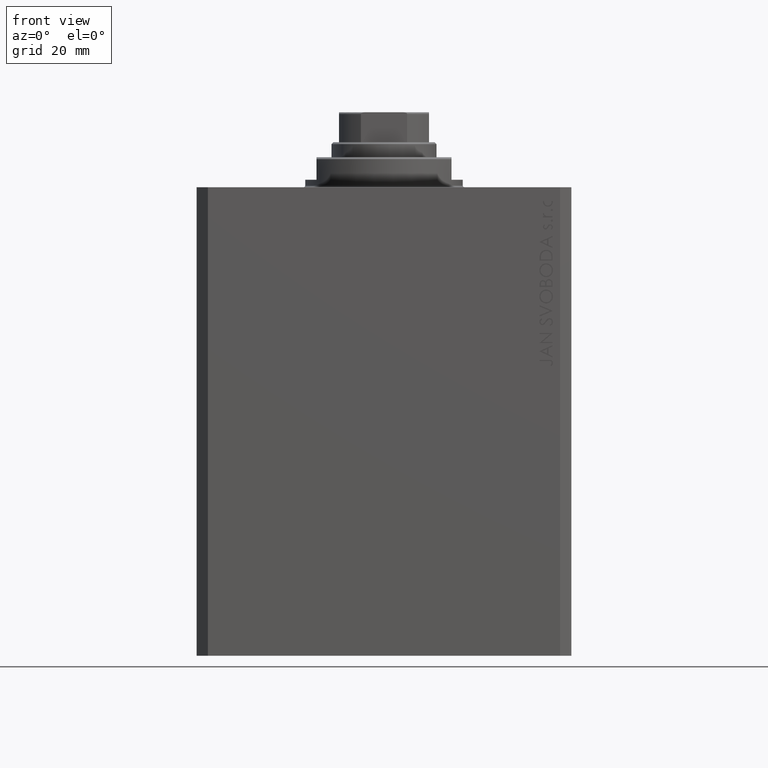
[diagram: clean part render]
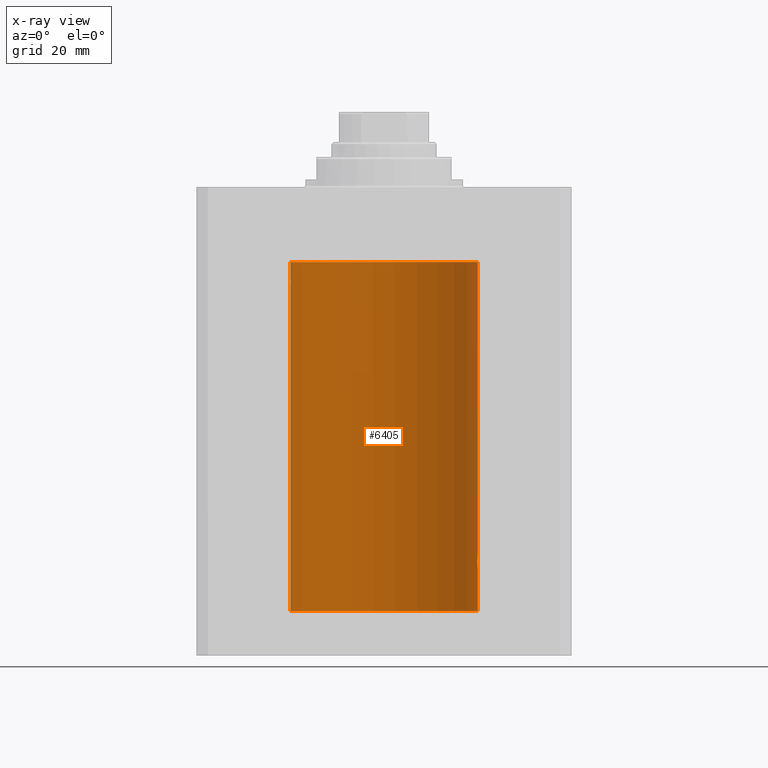
[diagram: x-ray — body ghosted, one internal face saturated and labeled with its STEP entity id]
A machine part, front view, then the same camera in x-ray: the body is ghosted and one INTERNAL B-rep face — a face not visible from any outside direction — is saturated and labeled: STEP entity #6405.
In plain terms, the highlighted cylindrical surface (partial cylindrical patch) has radius 25 mm, axis along (0, 0, 1).
Its self-contained STEP definition (entity closure, byte-faithful):
#331 = AXIS2_PLACEMENT_3D ( 'NONE', #22648, #15499, #21958 ) ;
#996 = DIRECTION ( 'NONE',  ( -0.000000000000000000, -0.000000000000000000, 1.000000000000000000 ) ) ;
#1014 = CARTESIAN_POINT ( 'NONE',  ( -24.94946096189906015, 1.590491165172939647, -26.21955560407613461 ) ) ;
#1070 = CARTESIAN_POINT ( 'NONE',  ( -25.00000000000000000, 3.061616997868383043E-15, -20.00000000000000355 ) ) ;
#1648 = EDGE_CURVE ( 'NONE', #32677, #12519, #36125, .T. ) ;
#1651 = CARTESIAN_POINT ( 'NONE',  ( 24.91987158875419794, 2.000000000000375255, -100.0000000000000000 ) ) ;
#2126 = CARTESIAN_POINT ( 'NONE',  ( 24.98454161695537223, 0.8873356620645981296, -101.7971726743456742 ) ) ;
#2364 = CARTESIAN_POINT ( 'NONE',  ( 24.99496001540385848, 0.5180074392840622322, -101.9361479946135205 ) ) ;
#3200 = CYLINDRICAL_SURFACE ( 'NONE', #18359, 25.00000000000000000 ) ;
#3552 = VERTEX_POINT ( 'NONE', #33590 ) ;
#3738 = VERTEX_POINT ( 'NONE', #1070 ) ;
#3762 = EDGE_CURVE ( 'NONE', #13056, #3738, #30987, .T. ) ;
#3852 = CARTESIAN_POINT ( 'NONE',  ( 25.00000000000000000, -1.072061970195355044E-23, -98.00000000000000000 ) ) ;
#4077 = CARTESIAN_POINT ( 'NONE',  ( 24.95467834240023919, 1.507571193169164436, -98.67914516237102873 ) ) ;
#4343 = CARTESIAN_POINT ( 'NONE',  ( -25.00000000000000000, 3.061616997868383043E-15, -113.0999999999999943 ) ) ;
#4603 = CARTESIAN_POINT ( 'NONE',  ( -24.92092244115666944, 1.987028274514494930, -25.26234881237649432 ) ) ;
#5399 = CARTESIAN_POINT ( 'NONE',  ( 25.00000000000000000, -1.072061970195355044E-23, -98.00000000000000000 ) ) ;
#5548 = CARTESIAN_POINT ( 'NONE',  ( -24.99895219182537787, 0.2621830013652935443, -23.01297886590101172 ) ) ;
#5699 = CARTESIAN_POINT ( 'NONE',  ( 24.92422785753204906, 1.947526681255389525, -100.5244453533215392 ) ) ;
#6405 = ADVANCED_FACE ( 'NONE', ( #46644 ), #3200, .F. ) ;
#6730 = VERTEX_POINT ( 'NONE', #29508 ) ;
#6953 = CARTESIAN_POINT ( 'NONE',  ( 24.98009620012517829, 1.003265033550135854, -98.26494305889434600 ) ) ;
#7311 = CARTESIAN_POINT ( 'NONE',  ( 0.000000000000000000, 0.000000000000000000, -20.00000000000000355 ) ) ;
#7432 = VECTOR ( 'NONE', #28616, 1000.000000000000000 ) ;
#8168 = CARTESIAN_POINT ( 'NONE',  ( -24.91986783040116649, 2.000046828840892577, -25.12978542103931545 ) ) ;
#8640 = CARTESIAN_POINT ( 'NONE',  ( -25.00000000000000000, 0.1322014778934262891, -23.00000000000000355 ) ) ;
#9275 = CARTESIAN_POINT ( 'NONE',  ( 24.93900639076503722, 1.748128916801924504, -101.0059564568424264 ) ) ;
#9587 = CARTESIAN_POINT ( 'NONE',  ( -24.99199174798888023, 0.6442364453337716679, -26.89793475977048232 ) ) ;
#9703 = VERTEX_POINT ( 'NONE', #5399 ) ;
#9823 = B_SPLINE_CURVE_WITH_KNOTS ( 'NONE', 3,
 ( #11238, #11004, #22196, #29365, #33180, #46818, #14116, #43717, #4077, #39667, #36067, #6953, #18606, #32488, #21495, #43947, #39893, #3852 ),
 .UNSPECIFIED., .F., .F.,
 ( 4, 2, 2, 2, 2, 2, 2, 2, 4 ),
 ( 0.003128423524421375217, 0.003519296810509137119, 0.003910170096596899021, 0.004301043382684660923, 0.004691916668772423693, 0.005082789954860184728, 0.005473663240947946630, 0.005864536527035708532, 0.006255409813123470435 ),
 .UNSPECIFIED. ) ;
#10600 = CARTESIAN_POINT ( 'NONE',  ( 0.000000000000000000, 0.000000000000000000, -113.0999999999999943 ) ) ;
#10804 = ORIENTED_EDGE ( 'NONE', *, *, #16297, .F. ) ;
#11004 = CARTESIAN_POINT ( 'NONE',  ( 24.91987158875419439, 2.000000000000375699, -99.86952236750346401 ) ) ;
#11056 = ORIENTED_EDGE ( 'NONE', *, *, #14223, .T. ) ;
#11238 = CARTESIAN_POINT ( 'NONE',  ( 24.91987158875419794, 2.000000000000375255, -100.0000000000000000 ) ) ;
#11757 = CARTESIAN_POINT ( 'NONE',  ( -24.96517827869064021, 1.322271947215002852, -23.49381014772490417 ) ) ;
#12235 = CARTESIAN_POINT ( 'NONE',  ( -24.99496228453478608, 0.5178909248663671194, -23.06382286360416956 ) ) ;
#12519 = VERTEX_POINT ( 'NONE', #26765 ) ;
#12864 = CARTESIAN_POINT ( 'NONE',  ( 25.00000000000000000, 3.613683980139323145E-15, -102.0000000000000142 ) ) ;
#13056 = VERTEX_POINT ( 'NONE', #39765 ) ;
#13203 = DIRECTION ( 'NONE',  ( -0.000000000000000000, -0.000000000000000000, 1.000000000000000000 ) ) ;
#13917 = CARTESIAN_POINT ( 'NONE',  ( 25.00000000000000000, 0.000000000000000000, -113.0999999999999943 ) ) ;
#14015 = DIRECTION ( 'NONE',  ( 0.000000000000000000, 0.000000000000000000, 1.000000000000000000 ) ) ;
#14116 = CARTESIAN_POINT ( 'NONE',  ( 24.93982559358191153, 1.735040297787688646, -98.99670286233153149 ) ) ;
#14118 = ORIENTED_EDGE ( 'NONE', *, *, #35982, .T. ) ;
#14182 = ORIENTED_EDGE ( 'NONE', *, *, #3762, .F. ) ;
#14223 = EDGE_CURVE ( 'NONE', #13056, #3552, #29766, .T. ) ;
#14397 = EDGE_CURVE ( 'NONE', #12519, #9703, #9823, .T. ) ;
#14881 = VECTOR ( 'NONE', #996, 1000.000000000000000 ) ;
#15331 = CARTESIAN_POINT ( 'NONE',  ( -24.99197317726958545, 0.6449463114735953795, -23.10230905830972858 ) ) ;
#15499 = DIRECTION ( 'NONE',  ( 0.000000000000000000, 0.000000000000000000, 1.000000000000000000 ) ) ;
#16038 = CARTESIAN_POINT ( 'NONE',  ( -24.93531696180024682, 1.797913585505315215, -25.88582454002299826 ) ) ;
#16297 = EDGE_CURVE ( 'NONE', #6730, #24918, #41497, .T. ) ;
#17212 = CARTESIAN_POINT ( 'NONE',  ( -24.99492963589240091, 0.5195477780157325975, -26.93575766978349151 ) ) ;
#17984 = CARTESIAN_POINT ( 'NONE',  ( -25.00000000000000000, 3.061616997868383043E-15, -113.0999999999999943 ) ) ;
#18106 = AXIS2_PLACEMENT_3D ( 'NONE', #7311, #14015, #46245 ) ;
#18359 = AXIS2_PLACEMENT_3D ( 'NONE', #10600, #25149, #21776 ) ;
#18606 = CARTESIAN_POINT ( 'NONE',  ( 24.98457651818866765, 0.8863534138924961114, -98.20234421602245334 ) ) ;
#19617 = CARTESIAN_POINT ( 'NONE',  ( -24.97044682385318026, 1.220055540032808805, -26.59010549084178265 ) ) ;
#19814 = VERTEX_POINT ( 'NONE', #46578 ) ;
#20636 = ORIENTED_EDGE ( 'NONE', *, *, #24716, .T. ) ;
#21495 = CARTESIAN_POINT ( 'NONE',  ( 24.99493190796009046, 0.5194315891213243663, -98.06421314474680173 ) ) ;
#21776 = DIRECTION ( 'NONE',  ( 1.000000000000000000, 0.000000000000000000, 0.000000000000000000 ) ) ;
#21958 = DIRECTION ( 'NONE',  ( 1.000000000000000000, 0.000000000000000000, 0.000000000000000000 ) ) ;
#22196 = CARTESIAN_POINT ( 'NONE',  ( 24.92092960952687264, 1.986938806757485132, -99.73699118910590755 ) ) ;
#22648 = CARTESIAN_POINT ( 'NONE',  ( 0.000000000000000000, 0.000000000000000000, -113.0999999999999943 ) ) ;
#22950 = CARTESIAN_POINT ( 'NONE',  ( -24.93902394873053296, 1.747880816115506164, -23.99362802520557025 ) ) ;
#23182 = CARTESIAN_POINT ( 'NONE',  ( -24.92788761901291750, 1.898142276082072089, -25.64361034516351978 ) ) ;
#23594 = CARTESIAN_POINT ( 'NONE',  ( 25.00000000000000355, 0.1322318523520167877, -102.0000000000000142 ) ) ;
#23673 = CARTESIAN_POINT ( 'NONE',  ( -25.00000000000000000, -9.880247245846597702E-15, -23.00000000000000000 ) ) ;
#24380 = CARTESIAN_POINT ( 'NONE',  ( -25.00000000000000000, 3.061616987151861079E-15, -26.99999999999999645 ) ) ;
#24621 = CARTESIAN_POINT ( 'NONE',  ( -25.00000000000001066, 0.1305561315491718666, -27.00000000000000711 ) ) ;
#24716 = EDGE_CURVE ( 'NONE', #19814, #3738, #36403, .T. ) ;
#24791 = CARTESIAN_POINT ( 'NONE',  ( 25.00000000000000000, 0.000000000000000000, -113.0999999999999943 ) ) ;
#24918 = VERTEX_POINT ( 'NONE', #17984 ) ;
#25149 = DIRECTION ( 'NONE',  ( -0.000000000000000000, -0.000000000000000000, 1.000000000000000000 ) ) ;
#25905 = VECTOR ( 'NONE', #27414, 1000.000000000000000 ) ;
#26310 = CARTESIAN_POINT ( 'NONE',  ( -24.94950203352433604, 1.598895442473012851, -23.77053781758364792 ) ) ;
#26765 = CARTESIAN_POINT ( 'NONE',  ( 24.91987158875419794, 2.000000000000375255, -100.0000000000000000 ) ) ;
#26930 = CARTESIAN_POINT ( 'NONE',  ( -25.00000000000000000, 3.061616997868383043E-15, -113.0999999999999943 ) ) ;
#27175 = CARTESIAN_POINT ( 'NONE',  ( 24.98014008684978648, 1.002218476749560327, -101.7356982428406553 ) ) ;
#27414 = DIRECTION ( 'NONE',  ( -0.000000000000000000, -0.000000000000000000, 1.000000000000000000 ) ) ;
#27504 = CARTESIAN_POINT ( 'NONE',  ( -24.99894363691344168, 0.2631623743596695486, -26.98691550260398841 ) ) ;
#27658 = CARTESIAN_POINT ( 'NONE',  ( 24.96516502151963124, 1.322522485723470531, -101.5059723511098184 ) ) ;
#28309 = EDGE_LOOP ( 'NONE', ( #39956, #10804, #45719, #29913, #34851, #14118, #20636, #14182, #11056 ) ) ;
#28561 = VECTOR ( 'NONE', #13203, 1000.000000000000000 ) ;
#28616 = DIRECTION ( 'NONE',  ( -0.000000000000000000, -0.000000000000000000, 1.000000000000000000 ) ) ;
#29365 = CARTESIAN_POINT ( 'NONE',  ( 24.92495585240437350, 1.935777409849491759, -99.48051441220836466 ) ) ;
#29508 = CARTESIAN_POINT ( 'NONE',  ( 25.00000000000000000, 0.000000000000000000, -113.0999999999999943 ) ) ;
#29766 = B_SPLINE_CURVE_WITH_KNOTS ( 'NONE', 3,
 ( #23673, #8640, #5548, #12235, #15331, #29890, #41587, #44465, #11757, #26310, #22950, #41127, #40881, #8168, #4603, #33707, #23182, #16038, #30596, #1014, #44699, #37524, #19617, #34187, #42298, #9587, #17212, #27504, #24621, #24380 ),
 .UNSPECIFIED., .F., .F.,
 ( 4, 2, 2, 2, 2, 2, 2, 2, 2, 2, 2, 2, 2, 2, 4 ),
 ( 1.711460648662030874E-19, 0.0003909631133201684925, 0.0007819262266403368767, 0.001172889339960505152, 0.001563852453280673536, 0.002345778679921010305, 0.003127704906561347507, 0.003518668019881516108, 0.003909631133201684275, 0.004300594246521852876, 0.004691557359842020609, 0.005082520473162189210, 0.005473483586482357811, 0.005864446699802525545, 0.006255409813122695013 ),
 .UNSPECIFIED. ) ;
#29890 = CARTESIAN_POINT ( 'NONE',  ( -24.98454822070441850, 0.8871466876120172040, -23.20273613247366384 ) ) ;
#29913 = ORIENTED_EDGE ( 'NONE', *, *, #1648, .T. ) ;
#29914 = EDGE_CURVE ( 'NONE', #6730, #32677, #32198, .T. ) ;
#30596 = CARTESIAN_POINT ( 'NONE',  ( -24.93980871060585258, 1.735282661184229358, -26.00288189918856219 ) ) ;
#30987 = LINE ( 'NONE', #26930, #25905 ) ;
#32198 = LINE ( 'NONE', #24791, #7432 ) ;
#32488 = CARTESIAN_POINT ( 'NONE',  ( 24.99199530066696795, 0.6440939830361788188, -98.10201906410962636 ) ) ;
#32677 = VERTEX_POINT ( 'NONE', #42561 ) ;
#33180 = CARTESIAN_POINT ( 'NONE',  ( 24.92790171662583276, 1.897957730269075105, -99.35585098575664631 ) ) ;
#33590 = CARTESIAN_POINT ( 'NONE',  ( -25.00000000000000000, 3.061616987151861079E-15, -26.99999999999999645 ) ) ;
#33707 = CARTESIAN_POINT ( 'NONE',  ( -24.92494360443313894, 1.935934657392621272, -25.51890776192067278 ) ) ;
#34187 = CARTESIAN_POINT ( 'NONE',  ( -24.98008786170526108, 1.003474227436682797, -26.73493817401089956 ) ) ;
#34851 = ORIENTED_EDGE ( 'NONE', *, *, #14397, .T. ) ;
#35284 = CARTESIAN_POINT ( 'NONE',  ( 24.99196954445030627, 0.6450912151121352966, -101.8976436764501869 ) ) ;
#35982 = EDGE_CURVE ( 'NONE', #9703, #19814, #39216, .T. ) ;
#36067 = CARTESIAN_POINT ( 'NONE',  ( 24.97045842037802998, 1.219816859706691625, -98.40971381657300299 ) ) ;
#36125 = B_SPLINE_CURVE_WITH_KNOTS ( 'NONE', 3,
 ( #12864, #23594, #38393, #2364, #35284, #2126, #27175, #41993, #27658, #42703, #9275, #5699, #38883, #1651 ),
 .UNSPECIFIED., .F., .F.,
 ( 4, 2, 2, 2, 2, 2, 4 ),
 ( 3.511612687242254074E-18, 0.0003910529405526748294, 0.0007821058811053461894, 0.001173158821658017766, 0.001564211762210689343, 0.002346317643316032063, 0.003128423524421375217 ),
 .UNSPECIFIED. ) ;
#36185 = EDGE_CURVE ( 'NONE', #24918, #3552, #41339, .T. ) ;
#36403 = CIRCLE ( 'NONE', #18106, 25.00000000000000000 ) ;
#37524 = CARTESIAN_POINT ( 'NONE',  ( -24.96524308704138662, 1.321128302361972873, -26.50733385850702817 ) ) ;
#38393 = CARTESIAN_POINT ( 'NONE',  ( 24.99895171050671294, 0.2622427397369110347, -101.9870152263268182 ) ) ;
#38883 = CARTESIAN_POINT ( 'NONE',  ( 24.91987158875419439, 2.000000000000375699, -100.2610752061100072 ) ) ;
#39216 = LINE ( 'NONE', #13917, #28561 ) ;
#39667 = CARTESIAN_POINT ( 'NONE',  ( 24.96525661602875701, 1.320872503675244003, -98.49244428507738292 ) ) ;
#39765 = CARTESIAN_POINT ( 'NONE',  ( -25.00000000000000000, -9.880247245846597702E-15, -23.00000000000000000 ) ) ;
#39893 = CARTESIAN_POINT ( 'NONE',  ( 25.00000000000000000, 0.1305261351234896783, -97.99999999999998579 ) ) ;
#39956 = ORIENTED_EDGE ( 'NONE', *, *, #36185, .F. ) ;
#40881 = CARTESIAN_POINT ( 'NONE',  ( -24.91987913663314558, 1.999905953907249456, -24.73827023896789967 ) ) ;
#41127 = CARTESIAN_POINT ( 'NONE',  ( -24.92424086025528496, 1.947362422016076788, -24.47497476601984090 ) ) ;
#41339 = LINE ( 'NONE', #4343, #14881 ) ;
#41497 = CIRCLE ( 'NONE', #331, 25.00000000000000000 ) ;
#41587 = CARTESIAN_POINT ( 'NONE',  ( -24.98014837415680489, 1.002010110534174547, -23.26418383162123149 ) ) ;
#41993 = CARTESIAN_POINT ( 'NONE',  ( 24.97046928552373046, 1.219632852334577633, -101.5904672177837540 ) ) ;
#42298 = CARTESIAN_POINT ( 'NONE',  ( -24.98456984035221851, 0.8865449913022026562, -26.79756360895472156 ) ) ;
#42561 = CARTESIAN_POINT ( 'NONE',  ( 25.00000000000000000, 3.613683980139323145E-15, -102.0000000000000142 ) ) ;
#42703 = CARTESIAN_POINT ( 'NONE',  ( 24.94948532700468391, 1.599156973339999066, -101.2291341524913690 ) ) ;
#43717 = CARTESIAN_POINT ( 'NONE',  ( 24.94947734723934829, 1.590234439578154468, -98.78011295253192259 ) ) ;
#43947 = CARTESIAN_POINT ( 'NONE',  ( 24.99894413130754600, 0.2631018416927612402, -98.01307842488789390 ) ) ;
#44465 = CARTESIAN_POINT ( 'NONE',  ( -24.97048098995609422, 1.219391728175664324, -23.40935049578022031 ) ) ;
#44699 = CARTESIAN_POINT ( 'NONE',  ( -24.95466269969938011, 1.507830206157726893, -26.32056178261444046 ) ) ;
#45719 = ORIENTED_EDGE ( 'NONE', *, *, #29914, .T. ) ;
#46245 = DIRECTION ( 'NONE',  ( 1.000000000000000000, 0.000000000000000000, 0.000000000000000000 ) ) ;
#46578 = CARTESIAN_POINT ( 'NONE',  ( 25.00000000000000000, 0.000000000000000000, -20.00000000000000355 ) ) ;
#46644 = FACE_OUTER_BOUND ( 'NONE', #28309, .T. ) ;
#46818 = CARTESIAN_POINT ( 'NONE',  ( 24.93533359819881667, 1.797683477752171743, -99.11371245509397454 ) ) ;